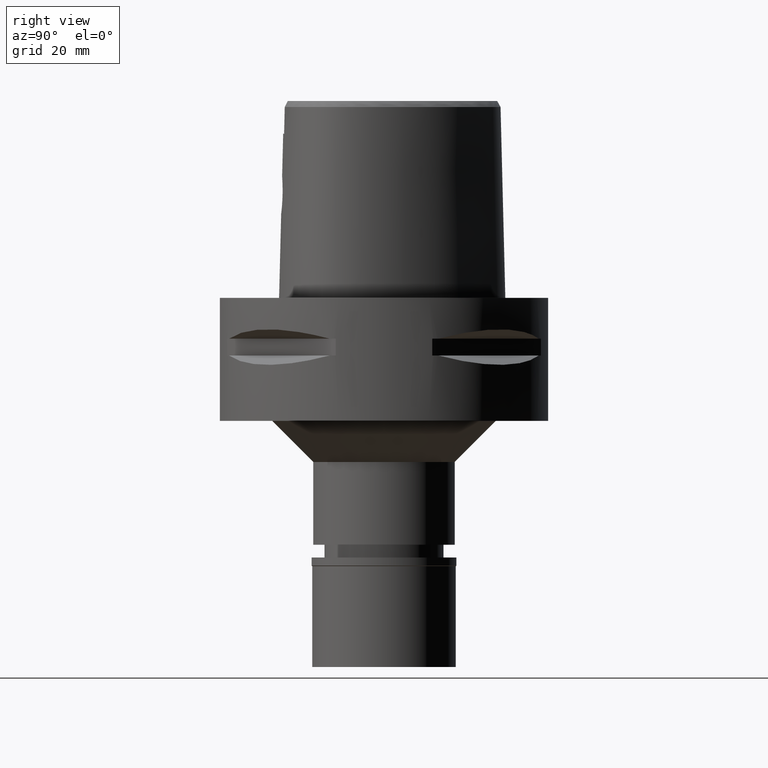
[diagram: clean part render]
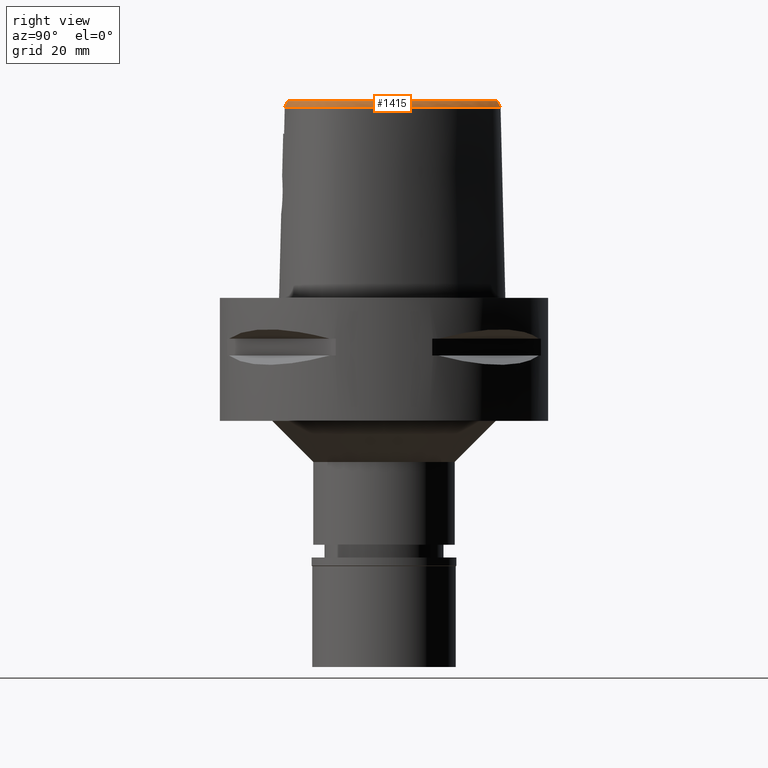
[diagram: same view with one face highlighted and labeled with its STEP entity id]
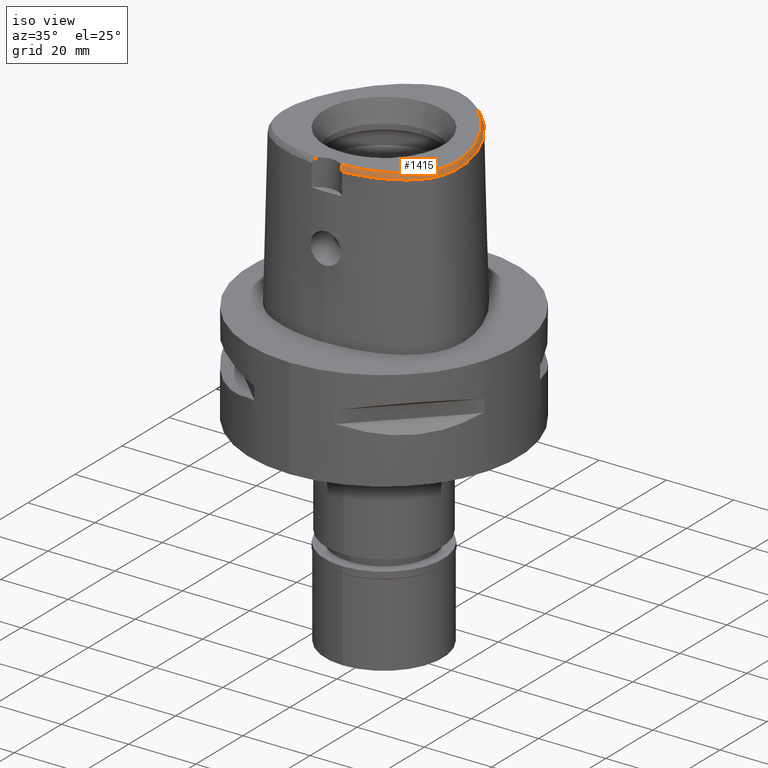
[diagram: same view with one face highlighted and labeled with its STEP entity id]
A machine part, right view. The second image highlights one B-rep face of the part: STEP entity #1415.
A second angle (iso view) of the same face is appended — the face is thin or edge-on in the first view.
In plain terms, the highlighted face is a freeform B-spline surface patch.
Its self-contained STEP definition (entity closure, byte-faithful):
#6 = CARTESIAN_POINT ( 'NONE',  ( 3.747630083148000057, -23.51282209796000089, 47.85677019223999906 ) ) ;
#17 = CARTESIAN_POINT ( 'NONE',  ( 25.04310249284999657, -0.08847488880381999821, 48.17929489919000474 ) ) ;
#45 = CARTESIAN_POINT ( 'NONE',  ( 2.951283516340000190, 27.49283868851000179, 47.56666129135999910 ) ) ;
#48 = CARTESIAN_POINT ( 'NONE',  ( 26.37661147601000167, -6.332044383981999758, 46.95402782072000036 ) ) ;
#61 = CARTESIAN_POINT ( 'NONE',  ( 26.04423705948806500, -10.88022456237800029, 46.52069972612036253 ) ) ;
#68 = CARTESIAN_POINT ( 'NONE',  ( 22.45659887780682951, 7.877591736060167271, 48.00000000001077893 ) ) ;
#70 = CARTESIAN_POINT ( 'NONE',  ( 25.02261242548000197, 1.469024035523000205, 47.56666120874000114 ) ) ;
#95 = CARTESIAN_POINT ( 'NONE',  ( 25.50543234601999742, -2.806473891432000212, 48.17929494107000465 ) ) ;
#110 = CARTESIAN_POINT ( 'NONE',  ( 16.39076485917413351, -21.20751266143594549, 46.52069409116134580 ) ) ;
#122 = CARTESIAN_POINT ( 'NONE',  ( 19.78466709479992147, 12.88995995782253168, 48.00000000000737543 ) ) ;
#124 = CARTESIAN_POINT ( 'NONE',  ( 26.56920382426000060, -8.432374207795001908, 46.34139381738999930 ) ) ;
#127 = B_SPLINE_CURVE_WITH_KNOTS ( 'NONE', 3,
 ( #2339, #378, #3503, #1690, #3938, #2019, #3987, #3220, #3654, #430, #3553, #3964, #4761, #61, #4300, #3247, #477, #1304, #4009, #3194, #2441, #4350, #110, #135, #1712, #3627 ),
 .UNSPECIFIED., .F., .F.,
 ( 4, 2, 2, 2, 2, 2, 2, 2, 2, 2, 2, 2, 4 ),
 ( 0.0000000000000000000, 0.06249999999999997224, 0.1249999999999999722, 0.2500000000000000000, 0.5000000000000000000, 0.5625000000000000000, 0.6249999999999998890, 0.6874999999999998890, 0.7187500000000000000, 0.7500000000000001110, 0.8125000000000001110, 0.8750000000000000000, 1.000000000000000000 ),
 .UNSPECIFIED. ) ;
#135 = CARTESIAN_POINT ( 'NONE',  ( 11.70978320535224881, -23.05272019185247601, 46.52069240067368128 ) ) ;
#148 = CARTESIAN_POINT ( 'NONE',  ( 11.07918744941001776, 23.03051546725058074, 48.00000000000517986 ) ) ;
#151 = CARTESIAN_POINT ( 'NONE',  ( 16.17367107400999870, 19.38935963351999803, 46.34139457244999960 ) ) ;
#174 = CARTESIAN_POINT ( 'NONE',  ( 24.34579675531153597, 2.948329282943657148, 48.00000000001364953 ) ) ;
#176 = CARTESIAN_POINT ( 'NONE',  ( 22.16467861839000264, 9.835214378978999861, 46.95402870442999443 ) ) ;
#203 = CARTESIAN_POINT ( 'NONE',  ( 12.08167783410000062, 22.05649309279000292, 48.17929470255000268 ) ) ;
#208 = CARTESIAN_POINT ( 'NONE',  ( 2.878253540095999874, -23.39382758005000085, 48.17929480421999955 ) ) ;
#226 = CARTESIAN_POINT ( 'NONE',  ( 23.26225374359841780, -14.77782433121539540, 48.00000000000952838 ) ) ;
#228 = CARTESIAN_POINT ( 'NONE',  ( 16.50928870759999967, 17.38245694296999844, 48.17929501592999486 ) ) ;
#253 = CARTESIAN_POINT ( 'NONE',  ( 15.91490923822999903, 19.16372355526000248, 46.95402800269000210 ) ) ;
#279 = CARTESIAN_POINT ( 'NONE',  ( 3.652533226355999751, -23.43985283522000174, 48.00000000000000000 ) ) ;
#281 = CARTESIAN_POINT ( 'NONE',  ( 7.545795865301999861, 26.48379106863000132, 46.34139439229999624 ) ) ;
#286 = CARTESIAN_POINT ( 'NONE',  ( 3.432876479454999963, -23.35683200928999881, 48.17929478186999859 ) ) ;
#315 = CARTESIAN_POINT ( 'NONE',  ( 22.51215688482999866, -16.10601398565000153, 47.56666122756000448 ) ) ;
#337 = CARTESIAN_POINT ( 'NONE',  ( 23.46021355485999749, -14.91857558931999961, 47.56666116328999294 ) ) ;
#365 = CARTESIAN_POINT ( 'NONE',  ( 23.18034740068999966, -14.71958816329000008, 48.17929497473000566 ) ) ;
#378 = CARTESIAN_POINT ( 'NONE',  ( 1.375467128704389808, 28.41206022877625870, 46.52071663099744825 ) ) ;
#390 = CARTESIAN_POINT ( 'NONE',  ( 23.01152251923999614, -15.51431258769000010, 47.56666133830000120 ) ) ;
#413 = CARTESIAN_POINT ( 'NONE',  ( 26.08769470753000164, -9.324784117576999876, 46.95402732358000009 ) ) ;
#430 = CARTESIAN_POINT ( 'NONE',  ( 26.30769162470658529, -1.593520748820500987, 46.52070310709580525 ) ) ;
#439 = CARTESIAN_POINT ( 'NONE',  ( 5.551354643116999554, 27.03199170050000077, 46.95402740900000538 ) ) ;
#443 = CARTESIAN_POINT ( 'NONE',  ( 25.36280943182999792, -10.93179907737999912, 47.56666119087999789 ) ) ;
#446 = CARTESIAN_POINT ( 'NONE',  ( -1.192047609672000055E-11, 28.41206021534999593, 46.52071719450999154 ) ) ;
#462 = CARTESIAN_POINT ( 'NONE',  ( -0.7594993333710000627, 27.46054496828000069, 48.17929504621000092 ) ) ;
#465 = CARTESIAN_POINT ( 'NONE',  ( 25.12023892828000271, -11.69009344552999963, 47.56666126646999970 ) ) ;
#477 = CARTESIAN_POINT ( 'NONE',  ( 24.33934953590093642, -14.68006085516936210, 46.52069803563264827 ) ) ;
#486 = CARTESIAN_POINT ( 'NONE',  ( -0.4991749595335999157, 27.47532872935000015, 48.17929497072999823 ) ) ;
#489 = CARTESIAN_POINT ( 'NONE',  ( 25.62826136772999774, -4.051724218159999502, 48.17929491799999653 ) ) ;
#495 = B_SPLINE_CURVE_WITH_KNOTS ( 'NONE', 3,
 ( #3461, #2293, #1536, #3121, #6, #4661 ),
 .UNSPECIFIED., .F., .F.,
 ( 4, 1, 1, 4 ),
 ( 0.0000000000000000000, 0.3333333333333000081, 0.6666666666667000474, 1.000000000000000000 ),
 .UNSPECIFIED. ) ;
#515 = CARTESIAN_POINT ( 'NONE',  ( 6.451834688366999693, 26.64212825610999857, 46.95402772120999657 ) ) ;
#519 = CARTESIAN_POINT ( 'NONE',  ( 25.74955639957000031, -9.265045194388999761, 47.56666115157999286 ) ) ;
#546 = CARTESIAN_POINT ( 'NONE',  ( 15.39738556666000058, 18.71245139875999897, 48.17929486316999999 ) ) ;
#562 = CARTESIAN_POINT ( 'NONE',  ( 2.140583849880473011, 27.40603513869408303, 48.00000000000831335 ) ) ;
#564 = CARTESIAN_POINT ( 'NONE',  ( 13.88772286150000035, 21.79343461831000184, 46.34139780178000478 ) ) ;
#568 = CARTESIAN_POINT ( 'NONE',  ( 2.942116183641999783, -24.42149538716000023, 46.34139511773000208 ) ) ;
#587 = CARTESIAN_POINT ( 'NONE',  ( 16.77738252509000105, 17.59691700561999994, 47.56666106372000513 ) ) ;
#612 = CARTESIAN_POINT ( 'NONE',  ( 13.54089058450871441, -21.43147460488432188, 48.00000000001045919 ) ) ;
#615 = CARTESIAN_POINT ( 'NONE',  ( 11.01624109974999932, 22.95219304907000080, 48.17929497923000071 ) ) ;
#620 = CARTESIAN_POINT ( 'NONE',  ( 9.058941961323000669, -22.57816085945000140, 48.17929495824000696 ) ) ;
#641 = CARTESIAN_POINT ( 'NONE',  ( 19.99160719155999999, 13.01702536940000066, 47.56666121067999597 ) ) ;
#645 = CARTESIAN_POINT ( 'NONE',  ( 7.549016480609999746, -23.91166534638000130, 46.34139362497000292 ) ) ;
#666 = CARTESIAN_POINT ( 'NONE',  ( 8.002255158887999542, 25.04934267309999640, 48.17929494893999731 ) ) ;
#691 = CARTESIAN_POINT ( 'NONE',  ( 12.15683615294145703, -21.88711351950545492, 48.00000000000801492 ) ) ;
#700 = CARTESIAN_POINT ( 'NONE',  ( 10.81449919523999981, -22.87240557395000096, 46.95402744524000127 ) ) ;
#724 = CARTESIAN_POINT ( 'NONE',  ( 21.95804290889999777, -16.69404595385000079, 47.56666118326000259 ) ) ;
#747 = CARTESIAN_POINT ( 'NONE',  ( 16.09854415560000263, -20.65457739340000032, 47.56666131736000125 ) ) ;
#748 = VECTOR ( 'NONE', #1972, 1000.000000000000114 ) ;
#771 = CARTESIAN_POINT ( 'NONE',  ( 19.09059848212999810, -19.00683667671999899, 47.56666143666000579 ) ) ;
#799 = CARTESIAN_POINT ( 'NONE',  ( 22.25605457993000158, -15.87726213705999889, 48.17929494814000435 ) ) ;
#822 = CARTESIAN_POINT ( 'NONE',  ( 25.68766231856000104, -5.220892987371999361, 48.17929496963000702 ) ) ;
#845 = CARTESIAN_POINT ( 'NONE',  ( 6.596521489158999607, 26.95352088941999824, 46.34139412609999908 ) ) ;
#848 = CARTESIAN_POINT ( 'NONE',  ( 25.69005747081000024, -6.317179891180999540, 48.17929489435999812 ) ) ;
#874 = CARTESIAN_POINT ( 'NONE',  ( 0.7466614028194999975, 28.49839291402999919, 46.34139341676000612 ) ) ;
#875 = CARTESIAN_POINT ( 'NONE',  ( 5.331982176208725832, 26.48833275828371470, 48.00000000000493827 ) ) ;
#877 = CARTESIAN_POINT ( 'NONE',  ( 25.68652896295999710, 1.644261965784000079, 46.34139371436999255 ) ) ;
#899 = CARTESIAN_POINT ( 'NONE',  ( 7.112111422624436408, 25.66156608519521498, 48.00000000000846256 ) ) ;
#901 = CARTESIAN_POINT ( 'NONE',  ( 26.71732985631999924, -5.192625315903000249, 46.34139358761000693 ) ) ;
#924 = CARTESIAN_POINT ( 'NONE',  ( 3.935306180136999288, 27.94990533253000109, 46.34139436143999546 ) ) ;
#926 = CARTESIAN_POINT ( 'NONE',  ( 24.78780591084689178, 1.407047860334867728, 48.00000000000549250 ) ) ;
#928 = CARTESIAN_POINT ( 'NONE',  ( 25.44437953775999972, -11.80345005256000235, 46.95402760091000260 ) ) ;
#954 = CARTESIAN_POINT ( 'NONE',  ( -0.5131422253716999560, 27.81832928216000056, 47.56666117294000173 ) ) ;
#958 = CARTESIAN_POINT ( 'NONE',  ( 17.68852893098012657, 16.00958332232504588, 48.00000000000472511 ) ) ;
#960 = CARTESIAN_POINT ( 'NONE',  ( 10.58694533777000046, 24.57723619635000034, 46.34139349732999591 ) ) ;
#978 = CARTESIAN_POINT ( 'NONE',  ( 5.628119991152551904, -23.25222728397208272, 48.00000000000575540 ) ) ;
#980 = CARTESIAN_POINT ( 'NONE',  ( 24.36292446316000238, 4.746253915270999713, 46.95402724899999924 ) ) ;
#984 = CARTESIAN_POINT ( 'NONE',  ( 3.458333855538000101, -23.69910989921000066, 47.56666162940000220 ) ) ;
#1002 = CARTESIAN_POINT ( 'NONE',  ( 9.079666835764349742, -22.67647771863669348, 48.00000000001399059 ) ) ;
#1005 = CARTESIAN_POINT ( 'NONE',  ( 22.98984225721999763, 8.120961021684998116, 46.95402900242000044 ) ) ;
#1011 = CARTESIAN_POINT ( 'NONE',  ( 4.381791787317999898, -23.62473724220999927, 47.56666166479999447 ) ) ;
#1030 = CARTESIAN_POINT ( 'NONE',  ( 22.67751771936000083, 7.978417855473001197, 47.56666184711000511 ) ) ;
#1058 = CARTESIAN_POINT ( 'NONE',  ( 21.55956317655000021, 11.70032375054999996, 46.34139378546999666 ) ) ;
#1089 = CARTESIAN_POINT ( 'NONE',  ( 18.90284493657000198, -18.71935550071999899, 48.17929486162000075 ) ) ;
#1095 = ORIENTED_EDGE ( 'NONE', *, *, #1915, .F. ) ;
#1117 = CARTESIAN_POINT ( 'NONE',  ( 20.32059644567000234, -18.99145135260000217, 46.34139409166999712 ) ) ;
#1142 = CARTESIAN_POINT ( 'NONE',  ( 17.02908869224999933, -19.81465867132999747, 48.17929495776999715 ) ) ;
#1166 = CARTESIAN_POINT ( 'NONE',  ( 24.44227989784000243, -14.68514631641999912, 46.34139343616999440 ) ) ;
#1176 = VERTEX_POINT ( 'NONE', #446 ) ;
#1177 = VERTEX_POINT ( 'NONE', #2509 ) ;
#1192 = CARTESIAN_POINT ( 'NONE',  ( 21.57404820116000010, -17.53391049812000091, 46.95402734277000434 ) ) ;
#1216 = CARTESIAN_POINT ( 'NONE',  ( 25.71413321156999743, 0.05720473873213000049, 46.95402779251999448 ) ) ;
#1240 = CARTESIAN_POINT ( 'NONE',  ( 25.16506146685000189, -12.53536443126999878, 46.95402775830999786 ) ) ;
#1263 = CARTESIAN_POINT ( 'NONE',  ( 2.875096040594000257, 27.15801029695999702, 48.17929492173000483 ) ) ;
#1266 = CARTESIAN_POINT ( 'NONE',  ( 25.16597113192000279, -13.37467873974000199, 46.34139318336000457 ) ) ;
#1292 = CARTESIAN_POINT ( 'NONE',  ( 0.7271154270065000036, 28.15554908872999818, 46.95402727386999686 ) ) ;
#1293 = CARTESIAN_POINT ( 'NONE',  ( 23.81116373424507415, 4.548397580874137702, 48.00000000000926548 ) ) ;
#1296 = CARTESIAN_POINT ( 'NONE',  ( 24.79609831879999859, -11.57673683848999957, 48.17929493202999680 ) ) ;
#1304 = CARTESIAN_POINT ( 'NONE',  ( 23.53784508589321689, -15.81022840325489121, 46.52069747213674589 ) ) ;
#1312 = CARTESIAN_POINT ( 'NONE',  ( 25.51037851176671012, -9.222789616917930644, 48.00000000001276845 ) ) ;
#1314 = CARTESIAN_POINT ( 'NONE',  ( 25.97062935558999897, -4.025827489706999884, 47.56666130039999985 ) ) ;
#1335 = CARTESIAN_POINT ( 'NONE',  ( 2.296776944283000166, 28.32249842446000088, 46.34139318148000797 ) ) ;
#1337 = CARTESIAN_POINT ( 'NONE',  ( 15.47311546589204312, 18.77848662925248036, 48.00000000001222134 ) ) ;
#1339 = CARTESIAN_POINT ( 'NONE',  ( 24.03975417859000174, 4.630368016656000840, 47.56666112067999563 ) ) ;
#1368 = CARTESIAN_POINT ( 'NONE',  ( 21.85849049215000051, 9.679932616224000697, 47.56666172365000023 ) ) ;
#1372 = CARTESIAN_POINT ( 'NONE',  ( 3.134701160634999706, -23.37789003707999669, 48.17929479238999591 ) ) ;
#1387 = CARTESIAN_POINT ( 'NONE',  ( 14.81975810291149109, -20.94516920634780632, 48.00000000000596856 ) ) ;
#1389 = CARTESIAN_POINT ( 'NONE',  ( 24.24985249583000169, 2.918488207321999983, 48.17929496030000536 ) ) ;
#1393 = CARTESIAN_POINT ( 'NONE',  ( 7.492564668731000133, -23.57301933942000005, 46.95402740517999973 ) ) ;
#1411 = CARTESIAN_POINT ( 'NONE',  ( 19.77345709183002498, -18.23990985539926513, 48.00000000000120792 ) ) ;
#1413 = CARTESIAN_POINT ( 'NONE',  ( 20.96034588437000323, 11.36507978031000121, 47.56666122731999735 ) ) ;
#1415 = ADVANCED_FACE ( 'NONE', ( #4850 ), #4841, .F. ) ;
#1420 = CARTESIAN_POINT ( 'NONE',  ( 9.200571796074001441, -23.25003950263999997, 46.95402744808999529 ) ) ;
#1443 = CARTESIAN_POINT ( 'NONE',  ( 23.40681404508000085, 6.286693990514000241, 47.56666150050000397 ) ) ;
#1467 = CARTESIAN_POINT ( 'NONE',  ( 9.540960626676000089, 25.30241523036000117, 46.34139372653000066 ) ) ;
#1471 = CARTESIAN_POINT ( 'NONE',  ( 13.62184085261000099, -21.66043900378999965, 47.56666129011000521 ) ) ;
#1495 = CARTESIAN_POINT ( 'NONE',  ( 16.24240530950000050, -20.96632920169000158, 46.95402772373999767 ) ) ;
#1522 = CARTESIAN_POINT ( 'NONE',  ( 22.44459418253000038, -17.17872882578000215, 46.34139361685000580 ) ) ;
#1536 = CARTESIAN_POINT ( 'NONE',  ( 4.209588407523000342, -23.91900971699000067, 47.06412822608999846 ) ) ;
#1544 = CARTESIAN_POINT ( 'NONE',  ( 24.15163845169000112, -14.50224512191000059, 46.95402728610999787 ) ) ;
#1567 = CARTESIAN_POINT ( 'NONE',  ( 15.16939346819000001, -21.80644196324000106, 46.34139368775000634 ) ) ;
#1595 = CARTESIAN_POINT ( 'NONE',  ( 25.98379959057000121, -7.369533941264999832, 47.56666142308000644 ) ) ;
#1619 = CARTESIAN_POINT ( 'NONE',  ( 3.652731663767999848, 26.95927323951000076, 48.17929488597000187 ) ) ;
#1622 = CARTESIAN_POINT ( 'NONE',  ( 24.82100278125000159, -14.04321810783999958, 46.34139389310999491 ) ) ;
#1642 = CARTESIAN_POINT ( 'NONE',  ( 5.294378534299000627, 26.39514168252000204, 48.17929496493000130 ) ) ;
#1644 = CARTESIAN_POINT ( 'NONE',  ( 23.18188527997645920, 6.195157684106344931, 48.00000000000320455 ) ) ;
#1646 = CARTESIAN_POINT ( 'NONE',  ( 26.32805240944000147, -1.312748005351000113, 46.34139381342999542 ) ) ;
#1673 = CARTESIAN_POINT ( 'NONE',  ( 20.74842146925732678, 11.24651447313288166, 48.00000000001081446 ) ) ;
#1675 = CARTESIAN_POINT ( 'NONE',  ( 24.21973155987999959, -13.71129016900999886, 47.56666125543999613 ) ) ;
#1690 = CARTESIAN_POINT ( 'NONE',  ( 5.530043876418822002, 27.35846726636649962, 46.52071494050972689 ) ) ;
#1700 = CARTESIAN_POINT ( 'NONE',  ( 6.307147887574999778, 26.33073562279999891, 47.56666131631000383 ) ) ;
#1703 = CARTESIAN_POINT ( 'NONE',  ( 25.64131904921999805, -7.344931909765999301, 48.17929486724000299 ) ) ;
#1712 = CARTESIAN_POINT ( 'NONE',  ( 8.153873202539774212, -23.84765792154576403, 46.52069127368183388 ) ) ;
#1722 = CARTESIAN_POINT ( 'NONE',  ( 8.053467330373941024, 25.13580020532074144, 48.00000000000255795 ) ) ;
#1724 = CARTESIAN_POINT ( 'NONE',  ( 22.36519318148999957, 7.835874689261000725, 48.17929469179999558 ) ) ;
#1745 = CARTESIAN_POINT ( 'NONE',  ( 9.029067995419786996, 24.52649931749673229, 48.00000000000954969 ) ) ;
#1747 = CARTESIAN_POINT ( 'NONE',  ( 22.47086674463000122, 9.990496141733999025, 46.34139568521000285 ) ) ;
#1773 = CARTESIAN_POINT ( 'NONE',  ( 19.53205162596999855, 15.00196895466999969, 46.34139449746999873 ) ) ;
#1777 = CARTESIAN_POINT ( 'NONE',  ( 4.349376585279999929, -23.28301958474999722, 48.17929476722999738 ) ) ;
#1794 = CARTESIAN_POINT ( 'NONE',  ( 23.65541542674824882, -14.18997106324608026, 48.00000000001148948 ) ) ;
#1796 = CARTESIAN_POINT ( 'NONE',  ( 12.53571156497999972, 22.57162637018000240, 46.95402893965999880 ) ) ;
#1800 = CARTESIAN_POINT ( 'NONE',  ( 3.509248607705000023, -24.38366567905000082, 46.34139532443999343 ) ) ;
#1821 = CARTESIAN_POINT ( 'NONE',  ( 14.28150778429999868, 19.93681609463000015, 48.17929457012999706 ) ) ;
#1845 = CARTESIAN_POINT ( 'NONE',  ( 4.358863301033725435, -23.38302754645861015, 48.00000000001020339 ) ) ;
#1849 = CARTESIAN_POINT ( 'NONE',  ( 8.352229360434000327, 25.64017694020999727, 46.95402750224999977 ) ) ;
#1855 = CARTESIAN_POINT ( 'NONE',  ( 20.44926806529000274, -17.59312083305000129, 48.17929497689000584 ) ) ;
#1871 = CARTESIAN_POINT ( 'NONE',  ( 18.95779336836775641, -18.80349047535074547, 48.00000000000748202 ) ) ;
#1879 = CARTESIAN_POINT ( 'NONE',  ( 10.64397126411000016, -22.20726637513000057, 48.17929495872000700 ) ) ;
#1905 = CARTESIAN_POINT ( 'NONE',  ( 13.85072812085999949, -22.30783693122999978, 46.34139402579999967 ) ) ;
#1915 = EDGE_CURVE ( 'NONE', #1176, #2560, #127, .T. ) ;
#1931 = CARTESIAN_POINT ( 'NONE',  ( 24.01994586318999936, -15.31655044138000044, 46.34139354042000036 ) ) ;
#1953 = CARTESIAN_POINT ( 'NONE',  ( 18.52920694072999908, -20.16183530978999983, 46.34139397167999874 ) ) ;
#1972 = DIRECTION ( 'NONE',  ( -8.028740711844270325E-12, -0.4887572309465159082, 0.8724198353989288668 ) ) ;
#1977 = CARTESIAN_POINT ( 'NONE',  ( 26.37410734374000398, -5.202047873059999716, 46.95402738162000134 ) ) ;
#1999 = CARTESIAN_POINT ( 'NONE',  ( 3.027470992086999768, 27.82766708005999945, 46.95402766098000313 ) ) ;
#2004 = CARTESIAN_POINT ( 'NONE',  ( 26.04964857093000319, 0.1300445525000999691, 46.34139423918999512 ) ) ;
#2019 = CARTESIAN_POINT ( 'NONE',  ( 10.99875819582850589, 24.38035098656035871, 46.52071268652614577 ) ) ;
#2029 = CARTESIAN_POINT ( 'NONE',  ( 0.2325907962420691866, 27.58331912251378881, 48.00000000000174794 ) ) ;
#2031 = CARTESIAN_POINT ( 'NONE',  ( 25.37861785220999877, -0.01563507503584999833, 47.56666134585000094 ) ) ;
#2054 = CARTESIAN_POINT ( 'NONE',  ( 25.72845965679291425, -4.044145215521511183, 48.00000000000895994 ) ) ;
#2056 = CARTESIAN_POINT ( 'NONE',  ( 26.32628013190999638, -7.394135972765000453, 46.95402797892000279 ) ) ;
#2083 = CARTESIAN_POINT ( 'NONE',  ( 5.422866588707999647, 26.71356669150999963, 47.56666118695999756 ) ) ;
#2085 = CARTESIAN_POINT ( 'NONE',  ( 13.24267791555629614, 21.12418368643744060, 48.00000000000303402 ) ) ;
#2087 = CARTESIAN_POINT ( 'NONE',  ( 23.91909594920000259, -13.54532619959000073, 48.17929493660000162 ) ) ;
#2113 = CARTESIAN_POINT ( 'NONE',  ( 0.6937438505403266120, 27.57019898701013005, 48.00000000000336797 ) ) ;
#2115 = CARTESIAN_POINT ( 'NONE',  ( 13.64946480969000042, 21.54623568403000178, 46.95403003921000362 ) ) ;
#2138 = CARTESIAN_POINT ( 'NONE',  ( 18.96209514279000174, 14.61907703794000035, 47.56666141334000741 ) ) ;
#2163 = CARTESIAN_POINT ( 'NONE',  ( 18.67711690118999712, 14.42763107958000113, 48.17929487126999533 ) ) ;
#2187 = CARTESIAN_POINT ( 'NONE',  ( 4.472216720976999405, -24.20009030094000124, 46.52069014668999358 ) ) ;
#2189 = CARTESIAN_POINT ( 'NONE',  ( 19.24707338437999837, 14.81052299630999869, 46.95402795541000529 ) ) ;
#2212 = CARTESIAN_POINT ( 'NONE',  ( 25.12949508357661799, -10.86427360166747391, 48.00000000000628830 ) ) ;
#2214 = CARTESIAN_POINT ( 'NONE',  ( 17.04547634257999889, 17.81137706826000056, 46.95402711149999675 ) ) ;
#2238 = CARTESIAN_POINT ( 'NONE',  ( 20.51253914625316455, -17.67119446946290395, 48.00000000000382983 ) ) ;
#2240 = CARTESIAN_POINT ( 'NONE',  ( 8.973732520358998599, 24.44262298674999911, 48.17929495461000045 ) ) ;
#2246 = CARTESIAN_POINT ( 'NONE',  ( 3.157911232767999898, -23.72032651273999804, 47.56666160395999299 ) ) ;
#2277 = CARTESIAN_POINT ( 'NONE',  ( 17.50478409516000156, -20.72828700851000150, 46.34139369729000180 ) ) ;
#2293 = CARTESIAN_POINT ( 'NONE',  ( 4.386010262911999469, -24.10370463421000053, 46.70661889088000152 ) ) ;
#2301 = CARTESIAN_POINT ( 'NONE',  ( 22.20131854570999863, -16.93638738981999836, 46.95402740005000197 ) ) ;
#2325 = CARTESIAN_POINT ( 'NONE',  ( 22.74319250625000066, -15.30002802082000102, 48.17929490232000234 ) ) ;
#2339 = CARTESIAN_POINT ( 'NONE',  ( -1.192047609672000055E-11, 28.41206021534999593, 46.52071719450999154 ) ) ;
#2350 = CARTESIAN_POINT ( 'NONE',  ( 12.42708471840999884, -22.77646900546999831, 46.34139406260000271 ) ) ;
#2369 = CARTESIAN_POINT ( 'NONE',  ( -1.192047609672000055E-11, 28.41206021534999593, 46.52071719450999154 ) ) ;
#2372 = CARTESIAN_POINT ( 'NONE',  ( 21.09784179489000167, -18.39343131899999761, 46.34139352039000670 ) ) ;
#2399 = CARTESIAN_POINT ( 'NONE',  ( 26.22841982821000073, -8.390319708879998117, 46.95402752652000089 ) ) ;
#2408 = EDGE_LOOP ( 'NONE', ( #1095, #3403, #4623, #3246 ) ) ;
#2424 = CARTESIAN_POINT ( 'NONE',  ( 4.491298471527249703, 26.80158405531903298, 48.00000000000625278 ) ) ;
#2428 = CARTESIAN_POINT ( 'NONE',  ( 25.84619908252000187, -2.764509410520000099, 47.56666124462999790 ) ) ;
#2441 = CARTESIAN_POINT ( 'NONE',  ( 20.45409312013607206, -18.82869992193957742, 46.52069578164907426 ) ) ;
#2448 = CARTESIAN_POINT ( 'NONE',  ( -0.01712824638595999982, 28.52013066574999911, 46.34139400469999970 ) ) ;
#2449 = CARTESIAN_POINT ( 'NONE',  ( 12.14811716929531826, 22.13187320258912294, 48.00000000000276401 ) ) ;
#2451 = CARTESIAN_POINT ( 'NONE',  ( 24.54690117755000145, -13.07728899393000077, 47.56666107000999943 ) ) ;
#2476 = CARTESIAN_POINT ( 'NONE',  ( 0.6880234753803999848, 27.46986143815000148, 48.17929498808999966 ) ) ;
#2477 = CARTESIAN_POINT ( 'NONE',  ( 25.64658655008032184, -8.318518488027139668, 48.00000000001129763 ) ) ;
#2479 = CARTESIAN_POINT ( 'NONE',  ( 24.23736620036000033, -12.92859412101999972, 48.17929501332999109 ) ) ;
#2498 = EDGE_CURVE ( 'NONE', #3270, #1177, #2775, .T. ) ;
#2504 = CARTESIAN_POINT ( 'NONE',  ( 25.33687583872158555, -10.06999584063231801, 48.00000000000672173 ) ) ;
#2506 = CARTESIAN_POINT ( 'NONE',  ( 26.24249291105000026, -10.27999389442999956, 46.34139355278000494 ) ) ;
#2509 = CARTESIAN_POINT ( 'NONE',  ( 3.652533226355999751, -23.43985283522000174, 48.00000000000000000 ) ) ;
#2524 = CARTESIAN_POINT ( 'NONE',  ( -0.8011080723148999994, 28.14566673830999832, 46.95402693483000434 ) ) ;
#2527 = CARTESIAN_POINT ( 'NONE',  ( 15.02800208662999992, 20.64645640191999831, 46.34139728318999829 ) ) ;
#2546 = CARTESIAN_POINT ( 'NONE',  ( 18.16115783665999928, 16.35628260762999986, 46.95402775265999651 ) ) ;
#2550 = CARTESIAN_POINT ( 'NONE',  ( 5.615772260282999362, -23.15251303355999823, 48.17929480572000500 ) ) ;
#2560 = VERTEX_POINT ( 'NONE', #2187 ) ;
#2569 = CARTESIAN_POINT ( 'NONE',  ( 22.82172265264002675, -15.36274108902224711, 48.00000000001008971 ) ) ;
#2571 = CARTESIAN_POINT ( 'NONE',  ( 23.30216679508999889, 8.263504187897002140, 46.34139615773000287 ) ) ;
#2577 = CARTESIAN_POINT ( 'NONE',  ( 7.436112856850999542, -23.23437333245999881, 47.56666118537999921 ) ) ;
#2598 = CARTESIAN_POINT ( 'NONE',  ( 24.68609474773000301, 4.862139813886000361, 46.34139337731999575 ) ) ;
#2620 = CARTESIAN_POINT ( 'NONE',  ( 7.065230234663000708, 25.57268375462999899, 48.17929488264000071 ) ) ;
#2653 = CARTESIAN_POINT ( 'NONE',  ( 18.35597807225000011, -19.86538150119000079, 46.95402762382000361 ) ) ;
#2681 = CARTESIAN_POINT ( 'NONE',  ( 13.50739721847999952, -21.33674004006999780, 48.17929492225999866 ) ) ;
#2702 = CARTESIAN_POINT ( 'NONE',  ( 18.00952033529000218, -19.27247388401000094, 48.17929492810000625 ) ) ;
#2717 = EDGE_CURVE ( 'NONE', #2560, #1177, #495, .T. ) ;
#2726 = CARTESIAN_POINT ( 'NONE',  ( 20.88165055168999729, -18.12666115701999914, 46.95402733922000493 ) ) ;
#2754 = CARTESIAN_POINT ( 'NONE',  ( 23.54818254523000221, -15.94288172141999915, 46.34139421026999628 ) ) ;
#2775 = B_SPLINE_CURVE_WITH_KNOTS ( 'NONE', 3,
 ( #4844, #2029, #2113, #3588, #562, #2826, #4063, #2424, #875, #3611, #899, #1722, #1745, #4334, #148, #2449, #2085, #3640, #1337, #4020, #958, #3686, #122, #1673, #3972, #68, #1644, #1293, #174, #926, #3256, #4746, #4358, #2054, #3230, #2851, #4382, #2477, #1312, #2504, #2212, #3739, #3383, #4912, #3761, #1794, #226, #2569, #4107, #4180, #3354, #2238, #1411, #1871, #4082, #3816, #3019, #1387, #612, #691, #4506, #1002, #2945, #978, #1845, #3788, #279 ),
 .UNSPECIFIED., .F., .F.,
 ( 4, 1, 1, 1, 1, 1, 1, 1, 1, 1, 1, 1, 1, 1, 1, 1, 1, 1, 1, 1, 1, 1, 1, 1, 1, 1, 1, 1, 1, 1, 1, 1, 1, 1, 1, 1, 1, 1, 1, 1, 1, 1, 1, 1, 1, 1, 1, 1, 1, 1, 1, 1, 1, 1, 1, 1, 1, 1, 1, 1, 1, 1, 1, 1, 4 ),
 ( 0.0000000000000000000, 0.01585579672639991777, 0.03171159345210006197, 0.04756739017779998413, 0.06342318690360004840, 0.07927898362929997056, 0.09513478035499989272, 0.1109905770807000369, 0.1268463738063999591, 0.1427021705320999923, 0.1585579672578999455, 0.1744137639835999787, 0.1902695607093000119, 0.2061253574349999340, 0.2219811541607000782, 0.2378369508864000004, 0.2536927476120999225, 0.2695485443380000179, 0.2854043410636999401, 0.3012601377893999732, 0.3171159345151000064, 0.3329717312407999286, 0.3488275279665000728, 0.3646833246923000260, 0.3805391214179999482, 0.3963949181436999813, 0.4122507148694000145, 0.4281065115951000477, 0.4439623083207999699, 0.4598181050465000030, 0.4756739017723000673, 0.4915296984979999895, 0.5073854952237000226, 0.5232412919494000558, 0.5390970886750999780, 0.5549528854007999001, 0.5708086821265999644, 0.5866644788522999976, 0.6025202755780000308, 0.6183760723036999529, 0.6342318690293999861, 0.6500876657551999394, 0.6659434624808999725, 0.6817992592067000368, 0.6976550559323999590, 0.7135108526580999921, 0.7293666493838000253, 0.7452224461095000585, 0.7610782428351999807, 0.7769340395610000449, 0.7927898362866999671, 0.8086456330124000003, 0.8245014297380999224, 0.8403572264637999556, 0.8562130231894999888, 0.8720688199152000220, 0.8879246166409999752, 0.9037804133667199924, 0.9196362100924300176, 0.9354920068181400428, 0.9513478035438499569, 0.9672036002695799661, 0.9830593969952899913, 0.9989151937210170029, 1.000000000000000000 ),
 .UNSPECIFIED. ) ;
#2778 = CARTESIAN_POINT ( 'NONE',  ( 26.65536533128999963, -3.974034032801000205, 46.34139406519999937 ) ) ;
#2798 = CARTESIAN_POINT ( 'NONE',  ( 3.103658467832999701, 28.16249547162000155, 46.34139403060000006 ) ) ;
#2801 = CARTESIAN_POINT ( 'NONE',  ( 24.53031712978000201, -12.27310731564000079, 48.17929490505000700 ) ) ;
#2825 = CARTESIAN_POINT ( 'NONE',  ( -0.01554961956106000118, 27.48987779924999941, 48.17929492453000506 ) ) ;
#2826 = CARTESIAN_POINT ( 'NONE',  ( 2.897393261679177989, 27.25600202852578491, 48.00000000000138556 ) ) ;
#2829 = CARTESIAN_POINT ( 'NONE',  ( 26.42583301548999941, -9.384523040763999902, 46.34139349558000021 ) ) ;
#2850 = CARTESIAN_POINT ( 'NONE',  ( 3.841114674681000096, 27.61969463486000009, 46.95402786960999464 ) ) ;
#2851 = CARTESIAN_POINT ( 'NONE',  ( 25.79052179444684967, -6.319355031379825682, 48.00000000001025313 ) ) ;
#2854 = CARTESIAN_POINT ( 'NONE',  ( 25.41141809161999987, -9.205306271201999735, 48.17929497958000695 ) ) ;
#2870 = CARTESIAN_POINT ( 'NONE',  ( 4.570267393002000134, 27.03127100722999998, 47.56666131000999798 ) ) ;
#2873 = CARTESIAN_POINT ( 'NONE',  ( 26.52773255552000009, -2.680580448696000317, 46.34139385174999859 ) ) ;
#2893 = CARTESIAN_POINT ( 'NONE',  ( -0.5410767570479001476, 28.50433038778999872, 46.34139357735000431 ) ) ;
#2896 = CARTESIAN_POINT ( 'NONE',  ( 24.04280119872000299, 6.545513332458999578, 46.34139483109999702 ) ) ;
#2925 = CARTESIAN_POINT ( 'NONE',  ( 20.66073723828000297, 11.19745779518999917, 48.17929494824000614 ) ) ;
#2945 = CARTESIAN_POINT ( 'NONE',  ( 7.396182376302963490, -22.99483633013436545, 48.00000000000937916 ) ) ;
#2947 = CARTESIAN_POINT ( 'NONE',  ( 13.17294870606999879, 21.05183781547000166, 48.17929451407000130 ) ) ;
#2952 = CARTESIAN_POINT ( 'NONE',  ( 9.129756878698000122, -22.91410018104000201, 47.56666120315999535 ) ) ;
#2971 = CARTESIAN_POINT ( 'NONE',  ( 11.44640443441999977, 23.48743350012999898, 46.95402732556999581 ) ) ;
#2977 = CARTESIAN_POINT ( 'NONE',  ( 9.271386713449999206, -23.58597882423999792, 46.34139369301000499 ) ) ;
#3000 = CARTESIAN_POINT ( 'NONE',  ( 19.69904513739999885, 12.83738634146000024, 48.17929495511999960 ) ) ;
#3019 = CARTESIAN_POINT ( 'NONE',  ( 15.99678577414683289, -20.43406366492658321, 48.00000000000702016 ) ) ;
#3021 = CARTESIAN_POINT ( 'NONE',  ( 9.351884591236999000, 25.01581781583000108, 46.95402746922000148 ) ) ;
#3025 = CARTESIAN_POINT ( 'NONE',  ( 12.12762234550999985, -21.79097439714000117, 48.17929491828000721 ) ) ;
#3053 = CARTESIAN_POINT ( 'NONE',  ( 17.18765382655000096, -20.11920145038999763, 47.56666120427999545 ) ) ;
#3081 = CARTESIAN_POINT ( 'NONE',  ( 23.27985253222999873, -15.72859715454999829, 46.95402777428999741 ) ) ;
#3104 = CARTESIAN_POINT ( 'NONE',  ( 12.22744313647999981, -22.11947259992000170, 47.56666129972000334 ) ) ;
#3121 = CARTESIAN_POINT ( 'NONE',  ( 3.935828120916000206, -23.66630057643000384, 47.55622250874000656 ) ) ;
#3129 = CARTESIAN_POINT ( 'NONE',  ( 18.18274920377000115, -19.56892769260000264, 47.56666127596000138 ) ) ;
#3154 = CARTESIAN_POINT ( 'NONE',  ( 25.76852014724000028, -11.91680665960000063, 46.34139393534999840 ) ) ;
#3176 = CARTESIAN_POINT ( 'NONE',  ( 1.512903153336000006, 28.43345274964000069, 46.34139292249000164 ) ) ;
#3179 = CARTESIAN_POINT ( 'NONE',  ( 24.84768929830999795, -12.40423587345000200, 47.56666133168000243 ) ) ;
#3194 = CARTESIAN_POINT ( 'NONE',  ( 21.61408639850539615, -17.89738970854790878, 46.52069634514499796 ) ) ;
#3205 = CARTESIAN_POINT ( 'NONE',  ( 1.474132532472999912, 28.09225288613999894, 46.95402696216999772 ) ) ;
#3208 = CARTESIAN_POINT ( 'NONE',  ( 25.90798822158000192, -10.20242762947999893, 46.95402735964999863 ) ) ;
#3220 = CARTESIAN_POINT ( 'NONE',  ( 20.76159157986810655, 13.99289103072048945, 46.52070817855889118 ) ) ;
#3230 = CARTESIAN_POINT ( 'NONE',  ( 25.78811069501144715, -5.218135357748000303, 48.00000000001064393 ) ) ;
#3234 = CARTESIAN_POINT ( 'NONE',  ( 25.65112286067999747, -1.428006345769000207, 47.56666123461999973 ) ) ;
#3246 = ORIENTED_EDGE ( 'NONE', *, *, #2717, .F. ) ;
#3247 = CARTESIAN_POINT ( 'NONE',  ( 24.69258566271353317, -14.08975149522519565, 46.52069831738060657 ) ) ;
#3254 = CARTESIAN_POINT ( 'NONE',  ( 3.746923169225000017, 27.28948393718000176, 47.56666137778999826 ) ) ;
#3256 = CARTESIAN_POINT ( 'NONE',  ( 25.14129527416821830, -0.06715740301651923483, 48.00000000000574119 ) ) ;
#3259 = CARTESIAN_POINT ( 'NONE',  ( 25.48243363538999873, -12.66649298907999999, 46.34139418493000306 ) ) ;
#3270 = VERTEX_POINT ( 'NONE', #4579 ) ;
#3277 = CARTESIAN_POINT ( 'NONE',  ( -0.01660203744432999992, 28.17671304358000128, 46.95402764465000445 ) ) ;
#3280 = CARTESIAN_POINT ( 'NONE',  ( 10.18208551842999832, 24.02259659857000074, 47.56666115203999823 ) ) ;
#3286 = CARTESIAN_POINT ( 'NONE',  ( 4.446622191392000545, -24.30817255712999625, 46.34139545995000020 ) ) ;
#3305 = CARTESIAN_POINT ( 'NONE',  ( 20.57673129987999872, 13.37630342527999971, 46.34139372178999849 ) ) ;
#3332 = CARTESIAN_POINT ( 'NONE',  ( 24.90551724563999869, 3.122416420302999818, 46.95402743606999962 ) ) ;
#3337 = CARTESIAN_POINT ( 'NONE',  ( 5.657963277833999882, -23.49322710756000276, 47.56666157176000098 ) ) ;
#3354 = CARTESIAN_POINT ( 'NONE',  ( 21.18145661121121393, -17.09850743469788625, 48.00000000000255795 ) ) ;
#3356 = CARTESIAN_POINT ( 'NONE',  ( 11.23132276709000088, 23.21981327459999989, 47.56666115240000181 ) ) ;
#3361 = CARTESIAN_POINT ( 'NONE',  ( 4.414206989354999777, -23.96645489967000131, 46.95402856237999600 ) ) ;
#3383 = CARTESIAN_POINT ( 'NONE',  ( 24.62320007856807536, -12.31148373401399532, 48.00000000000343192 ) ) ;
#3385 = CARTESIAN_POINT ( 'NONE',  ( 13.41120675788000050, 21.29903674974999817, 47.56666227663999535 ) ) ;
#3403 = ORIENTED_EDGE ( 'NONE', *, *, #4387, .T. ) ;
#3414 = CARTESIAN_POINT ( 'NONE',  ( 7.385607321755999877, 26.18008863062999581, 46.95402788908000247 ) ) ;
#3419 = CARTESIAN_POINT ( 'NONE',  ( 19.91640645136000032, -18.43626271309999964, 47.56666130730999953 ) ) ;
#3440 = CARTESIAN_POINT ( 'NONE',  ( 10.89976316080999830, -23.20497517337000204, 46.34139368849999840 ) ) ;
#3461 = CARTESIAN_POINT ( 'NONE',  ( 4.472216720976999405, -24.20009030094000124, 46.52069014668999358 ) ) ;
#3469 = CARTESIAN_POINT ( 'NONE',  ( 23.74007970902999887, -15.11756301534999913, 46.95402735185999887 ) ) ;
#3494 = CARTESIAN_POINT ( 'NONE',  ( 23.57035555939000204, -14.13644273289000175, 48.17929498600000215 ) ) ;
#3503 = CARTESIAN_POINT ( 'NONE',  ( 2.760678900605143760, 28.19254769430317253, 46.52071606750154587 ) ) ;
#3513 = CARTESIAN_POINT ( 'NONE',  ( 16.38626646339000104, -21.27808100997999929, 46.34139413012000119 ) ) ;
#3539 = CARTESIAN_POINT ( 'NONE',  ( 26.18696581901999920, -2.722544929608000430, 46.95402754819000535 ) ) ;
#3553 = CARTESIAN_POINT ( 'NONE',  ( 26.53043812451588579, -3.252830914801576156, 46.52070254359986734 ) ) ;
#3567 = CARTESIAN_POINT ( 'NONE',  ( 25.23897884263000080, -10.04729509957999944, 48.17929497339000733 ) ) ;
#3587 = CARTESIAN_POINT ( 'NONE',  ( 4.681909893625999075, 27.35599148197000119, 46.95402770599999798 ) ) ;
#3588 = CARTESIAN_POINT ( 'NONE',  ( 1.407937999592860034, 27.50970958195424743, 48.00000000000461142 ) ) ;
#3590 = CARTESIAN_POINT ( 'NONE',  ( 24.69065415674999997, 1.381405070393000090, 48.17929495591999967 ) ) ;
#3610 = CARTESIAN_POINT ( 'NONE',  ( -0.8219124417868000076, 28.48822762331999670, 46.34139287914000249 ) ) ;
#3611 = CARTESIAN_POINT ( 'NONE',  ( 6.204805495148988825, 26.11047595223296014, 48.00000000000385825 ) ) ;
#3613 = CARTESIAN_POINT ( 'NONE',  ( 25.57348353211000003, -10.12486136452999830, 47.56666116651999232 ) ) ;
#3627 = CARTESIAN_POINT ( 'NONE',  ( 4.472216720976999405, -24.20009030094000124, 46.52069014668999358 ) ) ;
#3638 = CARTESIAN_POINT ( 'NONE',  ( 2.181391923092000251, 27.64547658777999573, 47.56666106951000472 ) ) ;
#3640 = CARTESIAN_POINT ( 'NONE',  ( 14.35433142683388574, 20.00604447574848166, 48.00000000000352429 ) ) ;
#3644 = CARTESIAN_POINT ( 'NONE',  ( 25.03296071686999724, -10.83633477543000012, 48.17929496331000649 ) ) ;
#3654 = CARTESIAN_POINT ( 'NONE',  ( 24.48700992949119382, 6.834036305491383523, 46.52070592457530296 ) ) ;
#3665 = CARTESIAN_POINT ( 'NONE',  ( 17.88433563830000139, 16.15321830671000214, 47.56666132934000046 ) ) ;
#3686 = CARTESIAN_POINT ( 'NONE',  ( 18.76051936065165648, 14.48366014233124943, 48.00000000000838440 ) ) ;
#3688 = CARTESIAN_POINT ( 'NONE',  ( 11.66148610174999867, 23.75505372567000251, 46.34139349874000402 ) ) ;
#3712 = CARTESIAN_POINT ( 'NONE',  ( 14.77917065251999951, 20.40990963282000337, 46.95402971216999788 ) ) ;
#3719 = CARTESIAN_POINT ( 'NONE',  ( 3.483791231621999884, -24.04138778912999896, 46.95402847692000137 ) ) ;
#3739 = CARTESIAN_POINT ( 'NONE',  ( 24.89096213678954328, -11.60991207239641909, 48.00000000000286349 ) ) ;
#3741 = CARTESIAN_POINT ( 'NONE',  ( 18.43798003500999627, 16.55934690855000113, 46.34139417599000410 ) ) ;
#3745 = CARTESIAN_POINT ( 'NONE',  ( 2.920828635793000227, -24.07893945145999837, 46.95402834656000124 ) ) ;
#3761 = CARTESIAN_POINT ( 'NONE',  ( 24.00708073425509426, -13.59389763842678889, 48.00000000000732570 ) ) ;
#3763 = CARTESIAN_POINT ( 'NONE',  ( 17.31357016007999761, 18.02583713089999762, 46.34139315929000702 ) ) ;
#3788 = CARTESIAN_POINT ( 'NONE',  ( 3.695072017992859781, -23.43648746218549661, 48.00000000000630962 ) ) ;
#3790 = CARTESIAN_POINT ( 'NONE',  ( 7.225418778209000692, 25.87638619263000095, 47.56666138586000159 ) ) ;
#3795 = CARTESIAN_POINT ( 'NONE',  ( 3.181121304901000091, -24.06276298839999939, 46.95402841553000428 ) ) ;
#3816 = CARTESIAN_POINT ( 'NONE',  ( 17.07549476911848174, -19.90378693825441658, 48.00000000000877520 ) ) ;
#3824 = CARTESIAN_POINT ( 'NONE',  ( 21.71476727209000046, -16.45170451789000410, 48.17929496645999876 ) ) ;
#3848 = CARTESIAN_POINT ( 'NONE',  ( 23.02436149462999637, -16.56351768285000148, 46.34139378639999762 ) ) ;
#3876 = CARTESIAN_POINT ( 'NONE',  ( 20.66545930849000001, -17.85989099502999977, 47.56666115805000317 ) ) ;
#3903 = CARTESIAN_POINT ( 'NONE',  ( 22.76825918973000284, -16.33476583424999973, 46.95402750698000460 ) ) ;
#3925 = CARTESIAN_POINT ( 'NONE',  ( 19.71431145421000153, -18.15866839335000194, 48.17929491513000073 ) ) ;
#3938 = CARTESIAN_POINT ( 'NONE',  ( 6.913370730854225599, 26.74336904842993334, 46.52071437701381029 ) ) ;
#3949 = CARTESIAN_POINT ( 'NONE',  ( 26.03333447341000095, -6.324612137581000049, 47.56666135753999924 ) ) ;
#3964 = CARTESIAN_POINT ( 'NONE',  ( 26.66096789089047192, -6.450661550929248200, 46.52070141660809810 ) ) ;
#3972 = CARTESIAN_POINT ( 'NONE',  ( 21.64191216433176024, 9.570096010441824674, 48.00000000000973444 ) ) ;
#3974 = CARTESIAN_POINT ( 'NONE',  ( 25.98958763505999769, -1.370377175560000049, 46.95402752403000335 ) ) ;
#3987 = CARTESIAN_POINT ( 'NONE',  ( 13.63304938780060205, 22.11238814013741205, 46.52071155953431258 ) ) ;
#3993 = CARTESIAN_POINT ( 'NONE',  ( -0.7803037028428999600, 27.80310585328999906, 47.56666099052000618 ) ) ;
#3996 = CARTESIAN_POINT ( 'NONE',  ( 24.85643615474000256, -13.22598386684000182, 46.95402712667999623 ) ) ;
#4009 = CARTESIAN_POINT ( 'NONE',  ( 23.08984995679907826, -16.35075897049664917, 46.52069719038880891 ) ) ;
#4019 = CARTESIAN_POINT ( 'NONE',  ( 0.7075694511934998987, 27.81270526343999805, 47.56666113098000181 ) ) ;
#4020 = CARTESIAN_POINT ( 'NONE',  ( 16.58774972841221995, 17.44522137221508373, 48.00000000001087841 ) ) ;
#4022 = CARTESIAN_POINT ( 'NONE',  ( 26.66876067325000221, -7.418738004264000097, 46.34139453475999915 ) ) ;
#4043 = CARTESIAN_POINT ( 'NONE',  ( 2.123699412495999805, 27.30696566944000026, 48.17929501352999466 ) ) ;
#4047 = CARTESIAN_POINT ( 'NONE',  ( 23.71658389402000111, 4.514482118040000103, 48.17929499236000623 ) ) ;
#4063 = CARTESIAN_POINT ( 'NONE',  ( 3.680297990135311448, 27.05591354500058898, 48.00000000000211031 ) ) ;
#4065 = CARTESIAN_POINT ( 'NONE',  ( 20.28416924572000113, 13.19666439733999930, 46.95402746623000212 ) ) ;
#4082 = CARTESIAN_POINT ( 'NONE',  ( 18.06021793802599973, -19.35923481219331777, 48.00000000000041211 ) ) ;
#4085 = CARTESIAN_POINT ( 'NONE',  ( 21.25995453045999994, 11.53270176542999970, 46.95402750638999834 ) ) ;
#4107 = CARTESIAN_POINT ( 'NONE',  ( 22.33100613406482537, -15.94420923685201430, 48.00000000001057998 ) ) ;
#4109 = CARTESIAN_POINT ( 'NONE',  ( 12.76272843042000105, 22.82919300888000080, 46.34139605821000174 ) ) ;
#4136 = CARTESIAN_POINT ( 'NONE',  ( 17.60751343994999729, 15.95015400579000087, 48.17929490601999731 ) ) ;
#4158 = CARTESIAN_POINT ( 'NONE',  ( 9.162808555797999688, 24.72922040129000010, 47.56666121191999963 ) ) ;
#4180 = CARTESIAN_POINT ( 'NONE',  ( 21.78596494080747092, -16.52262878100285803, 48.00000000000378009 ) ) ;
#4189 = CARTESIAN_POINT ( 'NONE',  ( 21.34410444258000084, -17.27889174717000031, 47.56666115951999529 ) ) ;
#4216 = CARTESIAN_POINT ( 'NONE',  ( 21.80399195973999937, -17.78892924906000061, 46.34139352601000184 ) ) ;
#4236 = CARTESIAN_POINT ( 'NONE',  ( 12.32726392743999888, -22.44797080270000222, 46.95402768116000658 ) ) ;
#4259 = CARTESIAN_POINT ( 'NONE',  ( 15.95468300171000031, -20.34282558510999905, 48.17929491098000483 ) ) ;
#4286 = CARTESIAN_POINT ( 'NONE',  ( 10.72923522967999865, -22.53983597453999721, 47.56666120197999703 ) ) ;
#4300 = CARTESIAN_POINT ( 'NONE',  ( 25.61240997289937127, -12.23358473966325732, 46.52069916262447435 ) ) ;
#4312 = CARTESIAN_POINT ( 'NONE',  ( 26.03088483115000074, -5.211470430215999983, 47.56666117561999840 ) ) ;
#4334 = CARTESIAN_POINT ( 'NONE',  ( 10.03889926273797073, 23.82643791975379344, 48.00000000001273293 ) ) ;
#4336 = CARTESIAN_POINT ( 'NONE',  ( 25.69265814679000215, -11.02726337933999901, 46.95402741846000083 ) ) ;
#4350 = CARTESIAN_POINT ( 'NONE',  ( 17.84219066873961168, -20.48406917474970257, 46.52069465465721976 ) ) ;
#4357 = CARTESIAN_POINT ( 'NONE',  ( -0.01607582850270000002, 27.83329542140999990, 47.56666128458999765 ) ) ;
#4358 = CARTESIAN_POINT ( 'NONE',  ( 25.60516200877371773, -2.794192459353348035, 48.00000000000545697 ) ) ;
#4361 = CARTESIAN_POINT ( 'NONE',  ( 25.54685183610000010, -8.306210711049999418, 48.17929494479000141 ) ) ;
#4381 = CARTESIAN_POINT ( 'NONE',  ( 2.239084433687000164, 27.98398750612000185, 46.95402712549999791 ) ) ;
#4382 = CARTESIAN_POINT ( 'NONE',  ( 25.74155027847454136, -7.352132003089840495, 48.00000000000837019 ) ) ;
#4384 = CARTESIAN_POINT ( 'NONE',  ( 25.88763583216000086, -8.348265209964999656, 47.56666123565999982 ) ) ;
#4387 = EDGE_CURVE ( 'NONE', #1176, #3270, #4967, .T. ) ;
#4407 = CARTESIAN_POINT ( 'NONE',  ( 5.679842697525999462, 27.35041670949000192, 46.34139363103000164 ) ) ;
#4411 = CARTESIAN_POINT ( 'NONE',  ( 25.31265808629999725, -1.485635515978000143, 48.17929494522000056 ) ) ;
#4434 = CARTESIAN_POINT ( 'NONE',  ( 4.458624892379000393, 26.70655053248000144, 48.17929491402000508 ) ) ;
#4439 = CARTESIAN_POINT ( 'NONE',  ( 10.38451542810000028, 24.29991639745999521, 46.95402732467999840 ) ) ;
#4443 = CARTESIAN_POINT ( 'NONE',  ( 2.899541087944999873, -23.73638351576000005, 47.56666157539000039 ) ) ;
#4463 = CARTESIAN_POINT ( 'NONE',  ( 21.55230236590000104, 9.524650853468999756, 48.17929474287999625 ) ) ;
#4467 = CARTESIAN_POINT ( 'NONE',  ( 3.204331377034000283, -24.40519946406000074, 46.34139522708999692 ) ) ;
#4483 = CARTESIAN_POINT ( 'NONE',  ( 12.30869469954000017, 22.31405973148000044, 47.56666182109999852 ) ) ;
#4506 = CARTESIAN_POINT ( 'NONE',  ( 10.66892483387032264, -22.30459704282356626, 48.00000000000789413 ) ) ;
#4508 = CARTESIAN_POINT ( 'NONE',  ( 24.57768487074000063, 3.020452313812000078, 47.56666119817999316 ) ) ;
#4534 = CARTESIAN_POINT ( 'NONE',  ( 23.08882046825000245, 6.157284319541000528, 48.17929483520000389 ) ) ;
#4559 = CARTESIAN_POINT ( 'NONE',  ( 8.527216461208000808, 25.93559407376999815, 46.34139377890999612 ) ) ;
#4565 = CARTESIAN_POINT ( 'NONE',  ( 19.46610557325000102, -19.58179902869999722, 46.34139458673999457 ) ) ;
#4579 = CARTESIAN_POINT ( 'NONE',  ( -2.553408000952000005E-11, 27.58331912251000162, 48.00000000000000000 ) ) ;
#4598 = CARTESIAN_POINT ( 'NONE',  ( 20.11850144850999911, -18.71385703285000091, 46.95402769949000543 ) ) ;
#4623 = ORIENTED_EDGE ( 'NONE', *, *, #2498, .T. ) ;
#4626 = CARTESIAN_POINT ( 'NONE',  ( 14.78196260078000002, -20.85206582050000179, 48.17929495879999990 ) ) ;
#4644 = CARTESIAN_POINT ( 'NONE',  ( 21.11416068400000157, -17.02387299623000061, 48.17929497628000490 ) ) ;
#4661 = CARTESIAN_POINT ( 'NONE',  ( 3.652533226355999751, -23.43985283522000174, 48.00000000000000000 ) ) ;
#4669 = CARTESIAN_POINT ( 'NONE',  ( 19.27835202769000134, -19.29431785270999811, 46.95402801170000373 ) ) ;
#4693 = CARTESIAN_POINT ( 'NONE',  ( 26.31299734344000285, -3.999930761254000267, 46.95402768280000316 ) ) ;
#4716 = CARTESIAN_POINT ( 'NONE',  ( -0.5271094912097998852, 28.16132983496999742, 46.95402737514999814 ) ) ;
#4719 = CARTESIAN_POINT ( 'NONE',  ( 24.52036717055999659, -13.87725413843000055, 46.95402757427999774 ) ) ;
#4745 = CARTESIAN_POINT ( 'NONE',  ( 1.435361911610000041, 27.75105302264000073, 47.56666100185000090 ) ) ;
#4746 = CARTESIAN_POINT ( 'NONE',  ( 25.41171405094498326, -1.468769615952806973, 48.00000000001161737 ) ) ;
#4748 = CARTESIAN_POINT ( 'NONE',  ( 25.35457069422000131, 1.556643000652999875, 46.95402746155000528 ) ) ;
#4761 = CARTESIAN_POINT ( 'NONE',  ( 26.56868348264638513, -7.988862950301080623, 46.52070085311217440 ) ) ;
#4770 = CARTESIAN_POINT ( 'NONE',  ( 4.793552394249999793, 27.68071195671999973, 46.34139410198999798 ) ) ;
#4774 = CARTESIAN_POINT ( 'NONE',  ( 26.71988847861999972, -6.339476630382000266, 46.34139428389999438 ) ) ;
#4792 = CARTESIAN_POINT ( 'NONE',  ( 1.396591290746999725, 27.40985315914999987, 48.17929504151999964 ) ) ;
#4795 = CARTESIAN_POINT ( 'NONE',  ( 26.02250686175000283, -11.12272768128999978, 46.34139364602999933 ) ) ;
#4817 = CARTESIAN_POINT ( 'NONE',  ( 6.162461086782999864, 26.01934298947999835, 48.17929491141000398 ) ) ;
#4820 = CARTESIAN_POINT ( 'NONE',  ( 14.53033921840999909, 20.17336286371999776, 47.56666214114999747 ) ) ;
#4823 = CARTESIAN_POINT ( 'NONE',  ( 7.379661044970999839, -22.89572732550000467, 48.17929496559000313 ) ) ;
#4841 = B_SPLINE_SURFACE_WITH_KNOTS ( 'NONE', 3, 3, ( 
 ( #208, #4443, #3745, #568 ),
 ( #1372, #2246, #3795, #4467 ),
 ( #286, #984, #3719, #1800 ),
 ( #1777, #1011, #3361, #3286 ),
 ( #2550, #3337, #4894, #4870 ),
 ( #4823, #2577, #1393, #645 ),
 ( #620, #2952, #1420, #2977 ),
 ( #1879, #4286, #700, #3440 ),
 ( #3025, #3104, #4236, #2350 ),
 ( #2681, #1471, #4999, #1905 ),
 ( #4626, #4972, #4947, #1567 ),
 ( #4259, #747, #1495, #3513 ),
 ( #1142, #3053, #5043, #2277 ),
 ( #2702, #3129, #2653, #1953 ),
 ( #1089, #771, #4669, #4565 ),
 ( #3925, #3419, #4598, #1117 ),
 ( #1855, #3876, #2726, #2372 ),
 ( #4644, #4189, #1192, #4216 ),
 ( #3824, #724, #2301, #1522 ),
 ( #799, #315, #3903, #3848 ),
 ( #2325, #390, #3081, #2754 ),
 ( #365, #337, #3469, #1931 ),
 ( #3494, #5022, #1544, #1166 ),
 ( #2087, #1675, #4719, #1622 ),
 ( #2479, #2451, #3996, #1266 ),
 ( #2801, #3179, #1240, #3259 ),
 ( #1296, #465, #928, #3154 ),
 ( #3644, #443, #4336, #4795 ),
 ( #3567, #3613, #3208, #2506 ),
 ( #2854, #519, #413, #2829 ),
 ( #4361, #4384, #2399, #124 ),
 ( #1703, #1595, #2056, #4022 ),
 ( #848, #3949, #48, #4774 ),
 ( #822, #4312, #1977, #901 ),
 ( #489, #1314, #4693, #2778 ),
 ( #95, #2428, #3539, #2873 ),
 ( #4411, #3234, #3974, #1646 ),
 ( #17, #2031, #1216, #2004 ),
 ( #3590, #70, #4748, #877 ),
 ( #1389, #4508, #3332, #4847 ),
 ( #4047, #1339, #980, #2598 ),
 ( #4534, #1443, #4888, #2896 ),
 ( #1724, #1030, #1005, #2571 ),
 ( #4463, #1368, #176, #1747 ),
 ( #2925, #1413, #4085, #1058 ),
 ( #3000, #641, #4065, #3305 ),
 ( #2163, #2138, #2189, #1773 ),
 ( #4136, #3665, #2546, #3741 ),
 ( #228, #587, #2214, #3763 ),
 ( #546, #4866, #253, #151 ),
 ( #1821, #4820, #3712, #2527 ),
 ( #2947, #3385, #2115, #564 ),
 ( #203, #4483, #1796, #4109 ),
 ( #615, #3356, #2971, #3688 ),
 ( #4914, #3280, #4439, #960 ),
 ( #2240, #4158, #3021, #1467 ),
 ( #666, #4941, #1849, #4559 ),
 ( #2620, #3790, #3414, #281 ),
 ( #4817, #1700, #515, #845 ),
 ( #1642, #2083, #439, #4407 ),
 ( #4434, #2870, #3587, #4770 ),
 ( #1619, #3254, #2850, #924 ),
 ( #1263, #45, #1999, #2798 ),
 ( #4043, #3638, #4381, #1335 ),
 ( #4792, #4745, #3205, #3176 ),
 ( #2476, #4019, #1292, #874 ),
 ( #2825, #4357, #3277, #2448 ),
 ( #486, #954, #4716, #2893 ),
 ( #462, #3993, #2524, #3610 ) ),
 .UNSPECIFIED., .F., .F., .F.,
 ( 4, 1, 1, 1, 1, 1, 1, 1, 1, 1, 1, 1, 1, 1, 1, 1, 1, 1, 1, 1, 1, 1, 1, 1, 1, 1, 1, 1, 1, 1, 1, 1, 1, 1, 1, 1, 1, 1, 1, 1, 1, 1, 1, 1, 1, 1, 1, 1, 1, 1, 1, 1, 1, 1, 1, 1, 1, 1, 1, 1, 1, 1, 1, 1, 1, 1, 4 ),
 ( 4, 4 ),
 ( -0.006501344654137999890, 0.0000000000000000000, 0.001084806278982999904, 0.01694060300470999827, 0.03279639973041999917, 0.04865219645615000144, 0.06450799318185999887, 0.08036378990756999630, 0.09621958663328000760, 0.1120753833589999970, 0.1279311800848000058, 0.1437869768104999835, 0.1596427735361999889, 0.1754985702619000221, 0.1913543669875999997, 0.2072101637133000052, 0.2230659604390000106, 0.2389217571648000193, 0.2547775538904999970, 0.2706333506161999747, 0.2864891473419000079, 0.3023449440675999855, 0.3182007407932999632, 0.3340565375190999720, 0.3499123342448000051, 0.3657681309706000139, 0.3816239276962999916, 0.3974797244219999692, 0.4133355211477000024, 0.4291913178734000356, 0.4450471145992000443, 0.4609029113249000220, 0.4767587080505999997, 0.4926145047763000329, 0.5084703015020000105, 0.5243260982276999327, 0.5401818949534999970, 0.5560376916792000301, 0.5718934884048999523, 0.5877492851305999855, 0.6036050818563000187, 0.6194608785820000518, 0.6353166753076999740, 0.6511724720334999272, 0.6670282687592000714, 0.6828840654848999936, 0.6987398622106000268, 0.7145956589363000599, 0.7304514556619999821, 0.7463072523879000775, 0.7621630491135999996, 0.7780188458392999218, 0.7938746425650000660, 0.8097304392906999881, 0.8255862360164000213, 0.8414420327421000545, 0.8572978294679000077, 0.8731536261936000409, 0.8890094229192999631, 0.9048652196450001073, 0.9207210163707000294, 0.9365768130963999516, 0.9524326098222000159, 0.9682884065478999380, 0.9841442032736000822, 1.000000000000000000, 1.017074182962999895 ),
 ( -0.09730926707947000487, 1.097309267073999894 ),
 .UNSPECIFIED. ) ;
#4844 = CARTESIAN_POINT ( 'NONE',  ( -2.553408000952000005E-11, 27.58331912251000162, 48.00000000000000000 ) ) ;
#4847 = CARTESIAN_POINT ( 'NONE',  ( 25.23334962054000030, 3.224380526793999557, 46.34139367395999898 ) ) ;
#4850 = FACE_OUTER_BOUND ( 'NONE', #2408, .T. ) ;
#4866 = CARTESIAN_POINT ( 'NONE',  ( 15.65614740244999936, 18.93808747701000073, 47.56666143292999749 ) ) ;
#4870 = CARTESIAN_POINT ( 'NONE',  ( 5.742345312936000035, -24.17465525556999850, 46.34139510381999827 ) ) ;
#4888 = CARTESIAN_POINT ( 'NONE',  ( 23.72480762190000192, 6.416103661486999954, 46.95402816580000405 ) ) ;
#4894 = CARTESIAN_POINT ( 'NONE',  ( 5.700154295385000403, -23.83394118155999664, 46.95402833778999963 ) ) ;
#4912 = CARTESIAN_POINT ( 'NONE',  ( 24.32795549672941249, -12.97211154200078198, 48.00000000001264766 ) ) ;
#4914 = CARTESIAN_POINT ( 'NONE',  ( 9.979655608766998753, 23.74527679968000271, 48.17929497939000072 ) ) ;
#4941 = CARTESIAN_POINT ( 'NONE',  ( 8.177242259660998158, 25.34475980664999994, 47.56666122560000076 ) ) ;
#4947 = CARTESIAN_POINT ( 'NONE',  ( 15.04024984572000179, -21.48831658233000041, 46.95402744476000123 ) ) ;
#4967 = LINE ( 'NONE', #2369, #748 ) ;
#4972 = CARTESIAN_POINT ( 'NONE',  ( 14.91110622324999824, -21.17019120141999977, 47.56666120178000057 ) ) ;
#4999 = CARTESIAN_POINT ( 'NONE',  ( 13.73628448672999980, -21.98413796751000149, 46.95402765795000022 ) ) ;
#5022 = CARTESIAN_POINT ( 'NONE',  ( 23.86099700553999625, -14.31934392740000028, 47.56666113605999868 ) ) ;
#5043 = CARTESIAN_POINT ( 'NONE',  ( 17.34621896084999904, -20.42374422945000134, 46.95402745077999640 ) ) ;